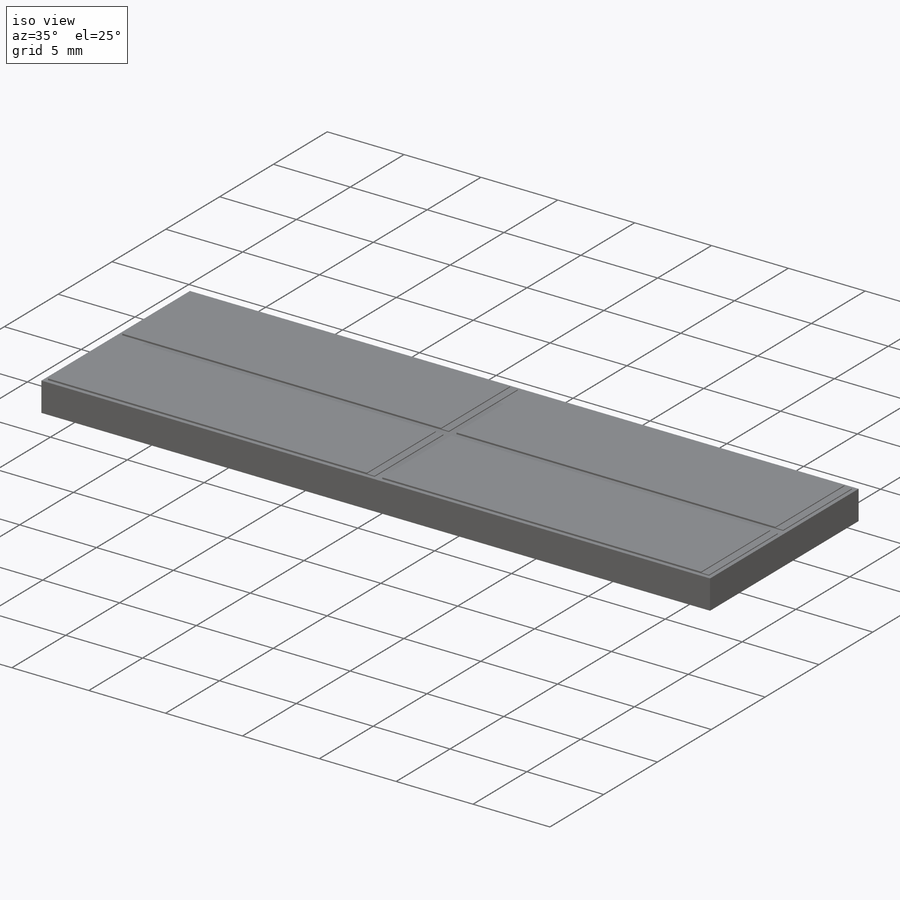
[diagram: iso view]
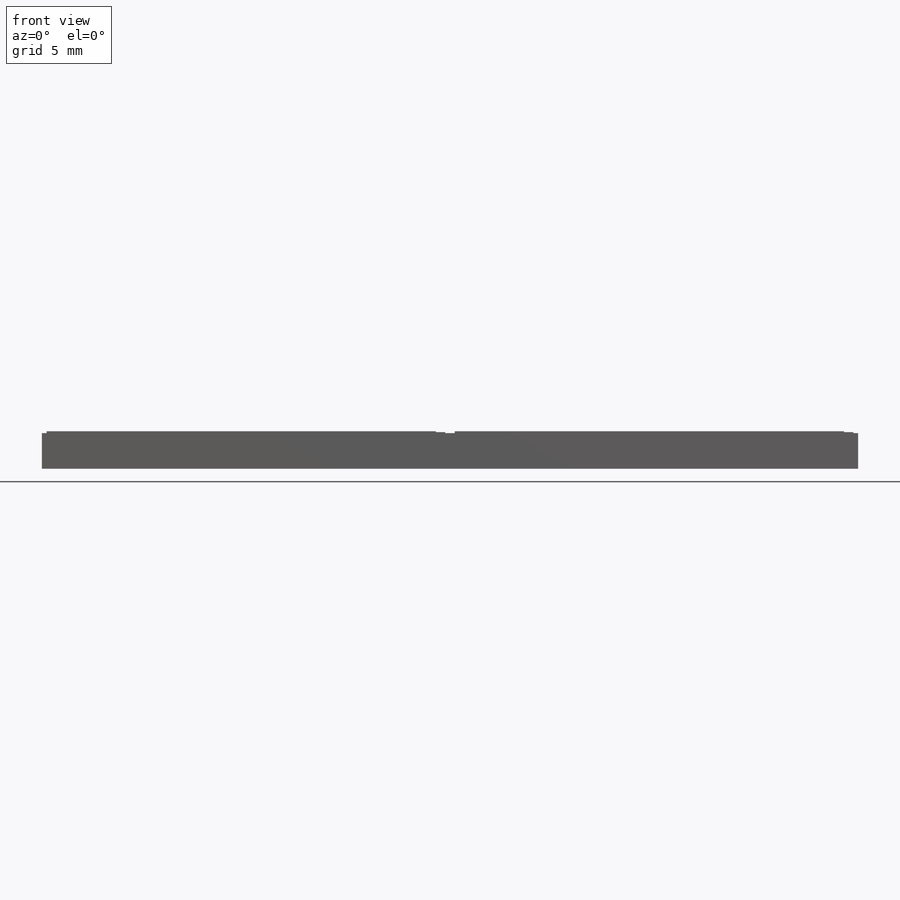
[diagram: front view]
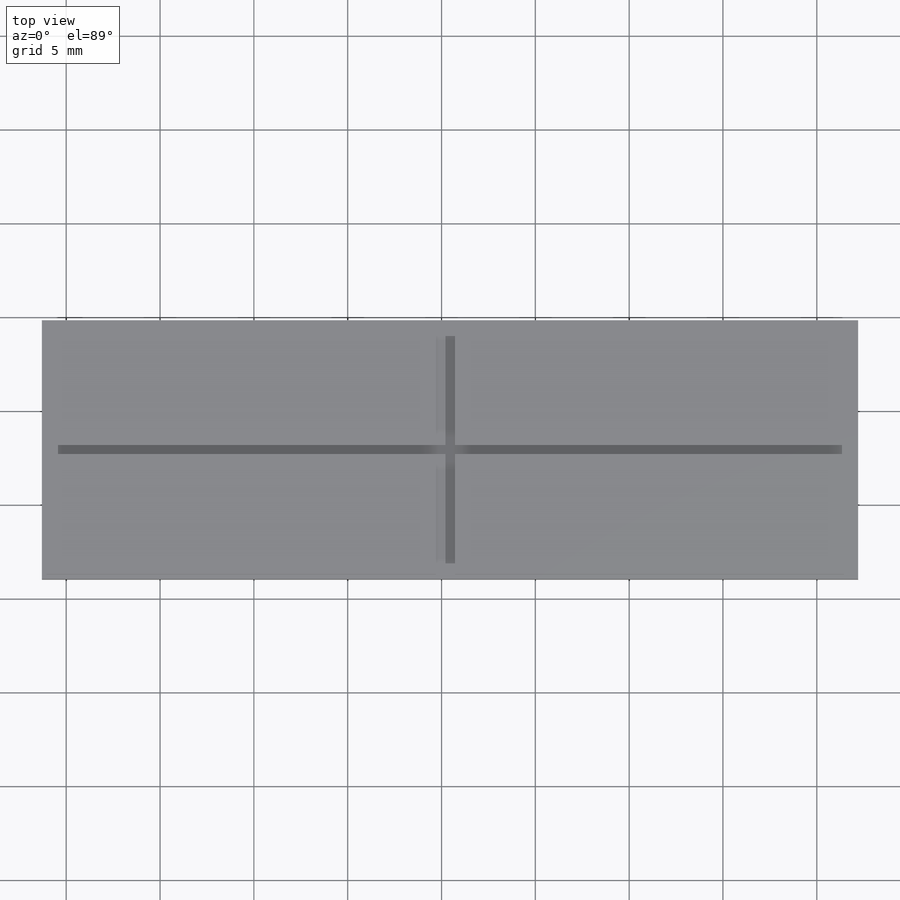
[diagram: top view]
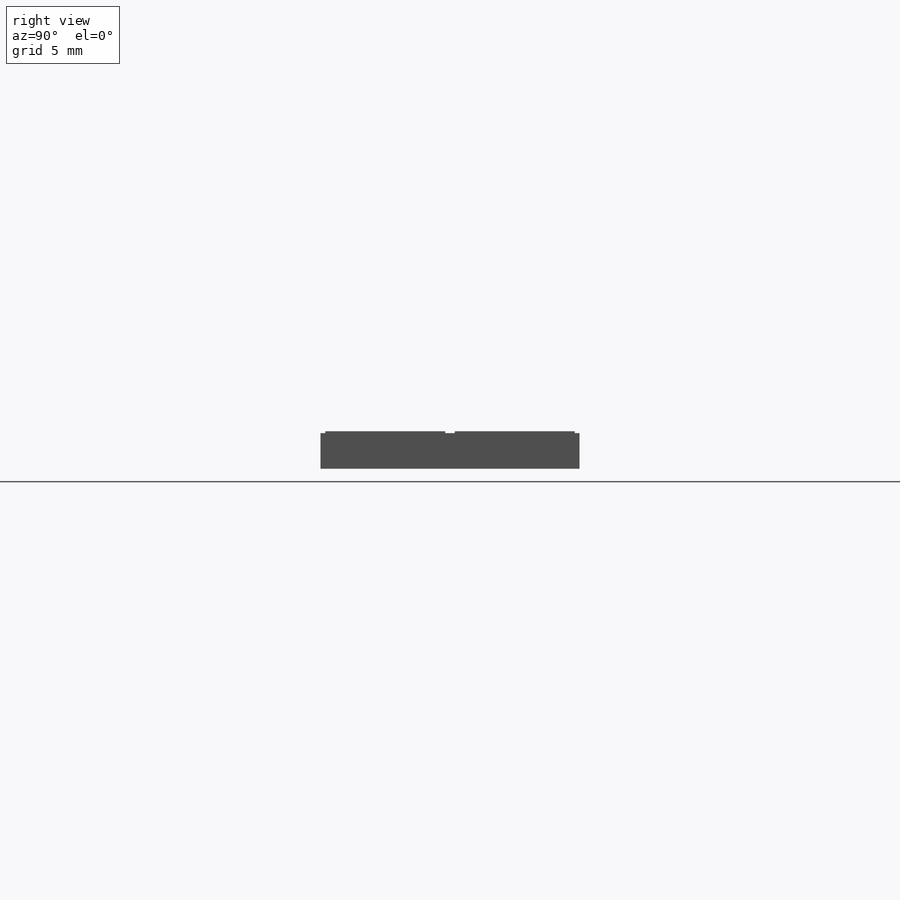
[diagram: right view]
SOLIDWORKS PART (.sldprt)
format: sldprt  version: not decoded by parser v0  size: 213,504 bytes
history: native  units: mm
features: sketch x3, extrude x2, material x1, cut_extrude x1 + 1 further entry (+12 scaffold rows collapsed)
feature tree (20):
  scaffold x12  (default folders/planes/origin — collapsed)
  material  "Material <not specified>"
  "Annotations"  RD1=13.8mm RD2=43.5mm
  sketch  "Sketch1"  dims[D1=13.8mm D2=43.5mm]
  extrude  "Boss-Extrude1"  Depth=1.9mm
  sketch  "Sketch2"  dims[c1.D1=0.25mm c1.D2=0.25mm c1.D3=0.25mm c1.D4=0.25mm c1.D5=6.4mm c2.D5=90.0deg c3.D5=6.4mm]
  extrude  "Boss-Extrude2"  Depth=0.1mm
  sketch  "Sketch10"  dims[D1=0.5mm D2=0.5mm D3=0.5mm D4=0.5mm]
  cut_extrude  "Cut-Extrude1"  Depth=0.05mm
decode coverage: 6 of 6 modeling features carry decoded parameters; 1 rows unclassified (native names shown)
note: suppression state not decoded; provenance and decode notes live in map.json
